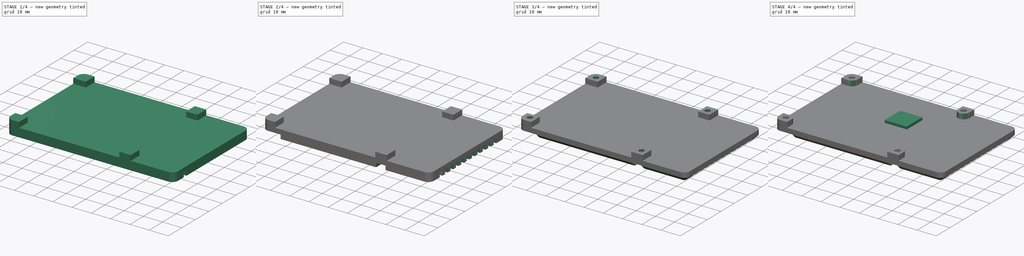
[diagram: build sequence overview — one tinted view per stage of 4, left to right]
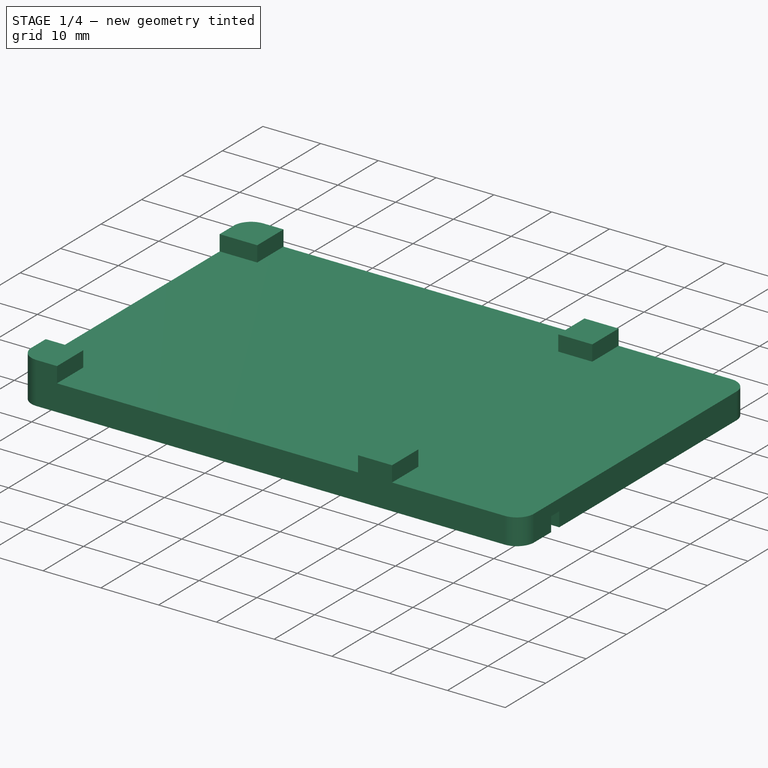
[diagram: stage 1 of 4 — iso view after this stage's code; geometry added in this stage tinted green]
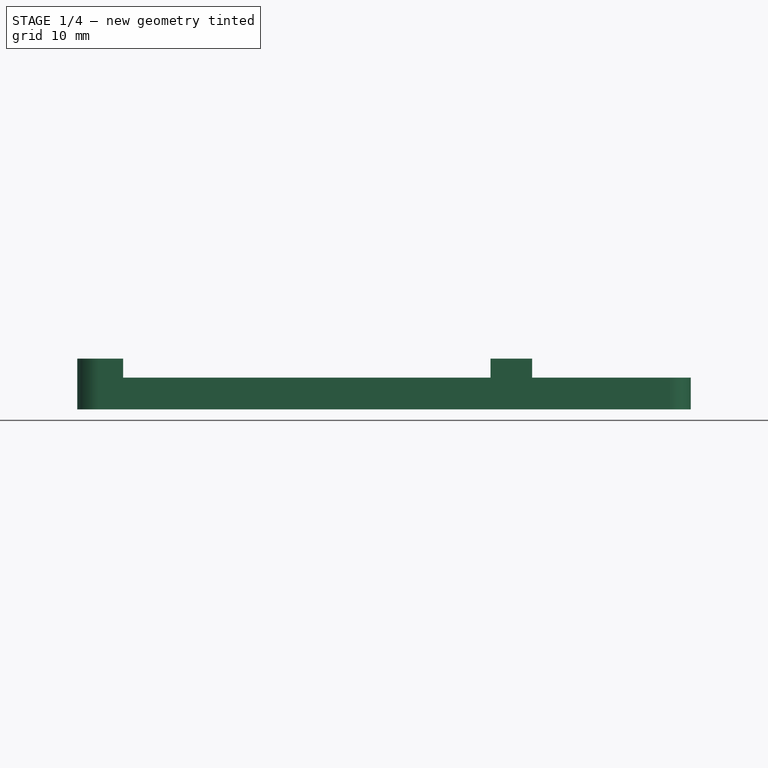
[diagram: stage 1 of 4 — front view after this stage's code; geometry added in this stage tinted green]
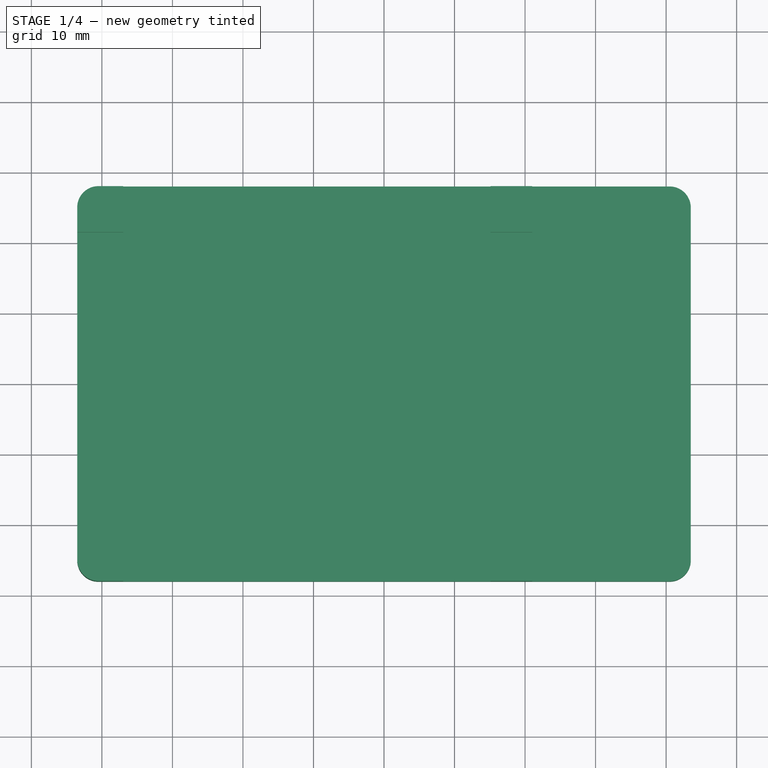
[diagram: stage 1 of 4 — top view after this stage's code; geometry added in this stage tinted green]
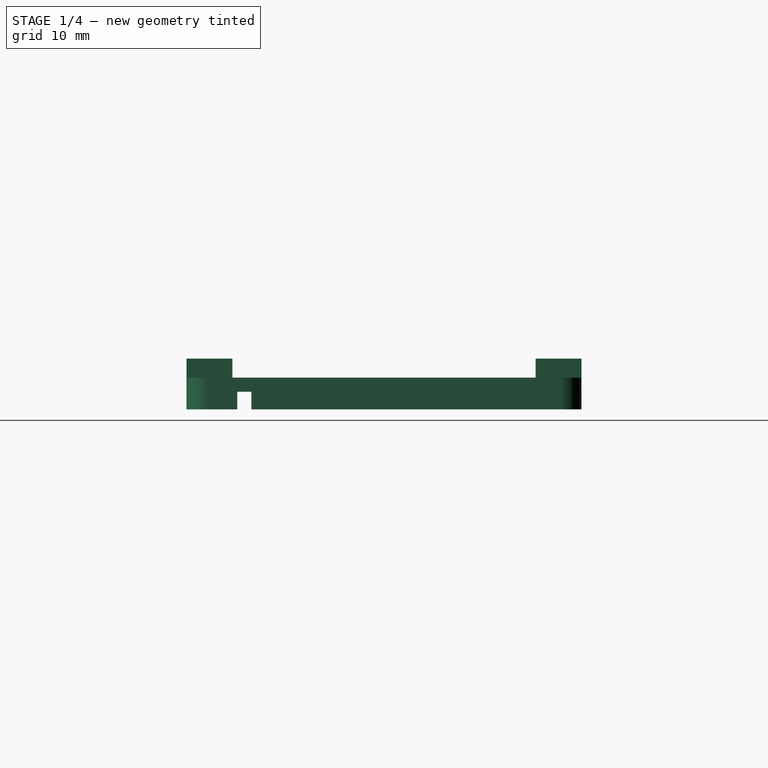
[diagram: stage 1 of 4 — right view after this stage's code; geometry added in this stage tinted green]
FCSTD DOCUMENT  (FreeCAD 0.18R16158 (Git))
Label: heatsink-bottom
License: All rights reserved
LicenseURL: http://en.wikipedia.org/wiki/All_rights_reserved
objects: Sketcher::SketchObject×7, PartDesign::Pocket×4, PartDesign::Pad×3, PartDesign::Mirrored×3, PartDesign::LinearPattern×1, PartDesign::Chamfer×1, PartDesign::Body×1
note: 27 computed .brp shape members not serialized (recipe doc carries the construction recipe); baked Part::Feature solids carry a one-line shape summary decoded from their .brp

FEATURE [Sketcher::SketchObject] Sketch
  MapMode = 5
  Support = -> [XY_Plane]
  sketch-geometry (8):
    g0: LineSegment StartX=43.5 StartY=25 StartZ=0 EndX=43.5 EndY=-25 EndZ=0
    g1: LineSegment StartX=-43.5 StartY=-25 StartZ=0 EndX=-43.5 EndY=25 EndZ=0
    g2: LineSegment StartX=-40.5 StartY=28 StartZ=0 EndX=40.5 EndY=28 EndZ=0
    g3: ArcOfCircle CenterX=-40.5 CenterY=25 CenterZ=0 NormalX=0 NormalY=0 NormalZ=1 AngleXU=0 Radius=3 StartAngle=1.5708 EndAngle=3.14159
    g4: ArcOfCircle CenterX=40.5 CenterY=25 CenterZ=0 NormalX=0 NormalY=0 NormalZ=1 AngleXU=0 Radius=3 StartAngle=0 EndAngle=1.5708
    g5: LineSegment StartX=-40.5 StartY=-28 StartZ=0 EndX=40.5 EndY=-28 EndZ=0
    g6: ArcOfCircle CenterX=-40.5 CenterY=-25 CenterZ=0 NormalX=0 NormalY=0 NormalZ=1 AngleXU=0 Radius=3 StartAngle=3.14159 EndAngle=4.71239
    g7: ArcOfCircle CenterX=40.5 CenterY=-25 CenterZ=0 NormalX=0 NormalY=0 NormalZ=1 AngleXU=0 Radius=3 StartAngle=4.71239 EndAngle=6.28319
  constraints (19):
    c: Vertical(g0)
    c: Vertical(g1)
    c: DistanceX(g1,g0) = 87
    c: Horizontal(g2)
    c: Tangent(g2,g4) = 1.5708
    c: Tangent(g4,g0) = 1.5708
    c: Tangent(g3,g1) = 1.5708
    c: Tangent(g3,g2) = 1.5708
    c: Horizontal(g5)
    c: Tangent(g5,g7) = -1.5708
    c: Tangent(g7,g0) = 1.5708
    c: Tangent(g6,g1) = 1.5708
    c: Tangent(g6,g5) = -1.5708
    c: Equal(g3,g4)
    c: Equal(g4,g6)
    c: Equal(g6,g7)
    c: DistanceY(g5,g2) = 56
    c: Symmetric(g3,g7,g-1)
    c: Radius(g3) = 3
FEATURE [PartDesign::Pad] Pad
  Length = 4.5
  Length2 = 100
  Profile = -> Sketch
  Type = 0
FEATURE [Sketcher::SketchObject] Sketch001
  ExternalGeometry = -> [Pad]
  MapMode = 5
  Placement = pos=(0,0,4.5) rot=(0,0,1;0rad)
  Support = -> [Pad]
  sketch-geometry (18):
    g0: LineSegment StartX=-43.5 StartY=21.5 StartZ=0 EndX=-37 EndY=21.5 EndZ=0
    g1: LineSegment StartX=-37 StartY=21.5 StartZ=0 EndX=-37 EndY=28 EndZ=0
    g2: LineSegment StartX=-43.5 StartY=21.5 StartZ=0 EndX=-43.5 EndY=25 EndZ=0
    g3: LineSegment StartX=-37 StartY=28 StartZ=0 EndX=-40.5 EndY=28 EndZ=0
    g4: ArcOfCircle CenterX=-40.5 CenterY=25 CenterZ=0 NormalX=0 NormalY=0 NormalZ=1 AngleXU=0 Radius=3 StartAngle=1.5708 EndAngle=3.14159
    g5: LineSegment StartX=15.1 StartY=28 StartZ=0 EndX=21 EndY=28 EndZ=0
    g6: LineSegment StartX=21 StartY=28 StartZ=0 EndX=21 EndY=21.5 EndZ=0
    g7: LineSegment StartX=21 StartY=21.5 StartZ=0 EndX=15.1 EndY=21.5 EndZ=0
    g8: LineSegment StartX=15.1 StartY=21.5 StartZ=0 EndX=15.1 EndY=28 EndZ=0
    g9: LineSegment StartX=-43.5 StartY=-21.5 StartZ=0 EndX=-43.5 EndY=-25 EndZ=0
    g10: LineSegment StartX=-40.5 StartY=-28 StartZ=0 EndX=-37 EndY=-28 EndZ=0
    g11: LineSegment StartX=-43.5 StartY=-21.5 StartZ=0 EndX=-37 EndY=-21.5 EndZ=0
    g12: LineSegment StartX=-37 StartY=-21.5 StartZ=0 EndX=-37 EndY=-28 EndZ=0
    g13: ArcOfCircle CenterX=-40.5 CenterY=-25 CenterZ=0 NormalX=0 NormalY=0 NormalZ=1 AngleXU=0 Radius=3 StartAngle=3.14159 EndAngle=4.71239
    g14: LineSegment StartX=15.1 StartY=-21.5 StartZ=0 EndX=21 EndY=-21.5 EndZ=0
    g15: LineSegment StartX=21 StartY=-21.5 StartZ=0 EndX=21 EndY=-28 EndZ=0
    g16: LineSegment StartX=21 StartY=-28 StartZ=0 EndX=15.1 EndY=-28 EndZ=0
    g17: LineSegment StartX=15.1 StartY=-28 StartZ=0 EndX=15.1 EndY=-21.5 EndZ=0
  constraints (49):
    c: PointOnObject(g0,g-3)
    c: Horizontal(g0)
    c: Coincident(g1,g0)
    c: PointOnObject(g1,g-4)
    c: Vertical(g1)
    c: Coincident(g2,g0)
    c: Coincident(g2,g-3)
    c: Coincident(g3,g1)
    c: Coincident(g3,g-4)
    c: Coincident(g4,g3)
    c: Tangent(g4,g2) = 1.5708
    c: DistanceX(g2,g1) = 6.5
    c: Coincident(g5,g6)
    c: Coincident(g6,g7)
    c: Coincident(g8,g5)
    c: Horizontal(g5)
    c: Horizontal(g7)
    c: Vertical(g6)
    c: Vertical(g8)
    c: PointOnObject(g5,g-4)
    c: DistanceX(g5,g5) = 5.9
    c: DistanceX(g1,g5) = 52.1
    c: PointOnObject(g9,g-3)
    c: Coincident(g9,g-3)
    c: Coincident(g10,g-5)
    c: Coincident(g11,g9)
    c: Horizontal(g11)
    c: Coincident(g12,g11)
    c: Coincident(g12,g10)
    c: Vertical(g12)
    c: Equal(g0,g1)
    c: Tangent(g13,g9) = -1.5708
    c: Tangent(g13,g10) = -1.5708
    c: Equal(g0,g11)
    c: Equal(g11,g12)
    c: Coincident(g14,g15)
    c: Coincident(g15,g16)
    c: Coincident(g16,g17)
    c: Horizontal(g14)
    c: Horizontal(g16)
    c: Vertical(g15)
    c: Vertical(g17)
    c: PointOnObject(g15,g-5)
    c: Vertical(g7,g14)
    c: DistanceY(g8,g8) = 6.5
    c: Equal(g17,g8)
    c: Coincident(g14,g17)
    c: Equal(g5,g16)
    c: Coincident(g7,g8)
FEATURE [PartDesign::Pad] Pad001
  BaseFeature = -> Pad
  Length = 2.7
  Length2 = 100
  Profile = -> Sketch001
  Type = 0
FEATURE [Sketcher::SketchObject] Sketch002
  ExternalGeometry = -> [Pad001]
  MapMode = 5
  Placement = pos=(0,0,0) rot=(1,0,0;3.14159rad)
  Support = -> [Pad001]
  sketch-geometry (4):
    g0: LineSegment StartX=-43.5 StartY=20.8 StartZ=0 EndX=43.5 EndY=20.8 EndZ=0
    g1: LineSegment StartX=43.5 StartY=20.8 StartZ=0 EndX=43.5 EndY=18.8 EndZ=0
    g2: LineSegment StartX=43.5 StartY=18.8 StartZ=0 EndX=-43.5 EndY=18.8 EndZ=0
    g3: LineSegment StartX=-43.5 StartY=18.8 StartZ=0 EndX=-43.5 EndY=20.8 EndZ=0
  constraints (12):
    c: Coincident(g0,g1)
    c: Coincident(g1,g2)
    c: Coincident(g2,g3)
    c: Coincident(g3,g0)
    c: Horizontal(g0)
    c: Horizontal(g2)
    c: Vertical(g1)
    c: Vertical(g3)
    c: PointOnObject(g0,g-3)
    c: PointOnObject(g1,g-4)
    c: DistanceY(g3,g3) = 2
    c: DistanceY(g0,g-5) = 7.2
FEATURE [PartDesign::Pocket] Pocket
  BaseFeature = -> Pad001
  Length = 2.5
  Length2 = 100
  Profile = -> Sketch002
  Type = 0
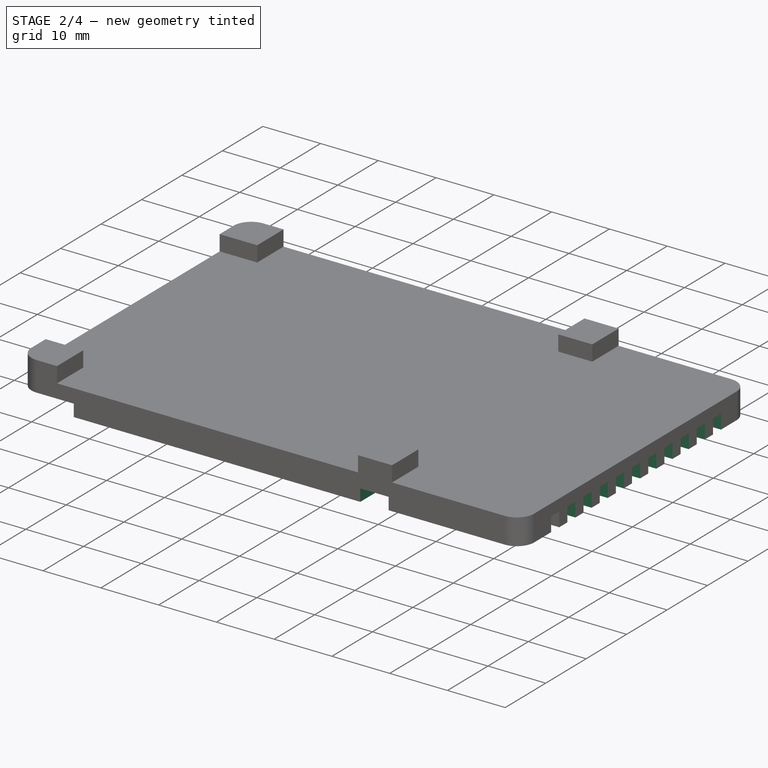
[diagram: stage 2 of 4 — iso view after this stage's code; geometry added in this stage tinted green]
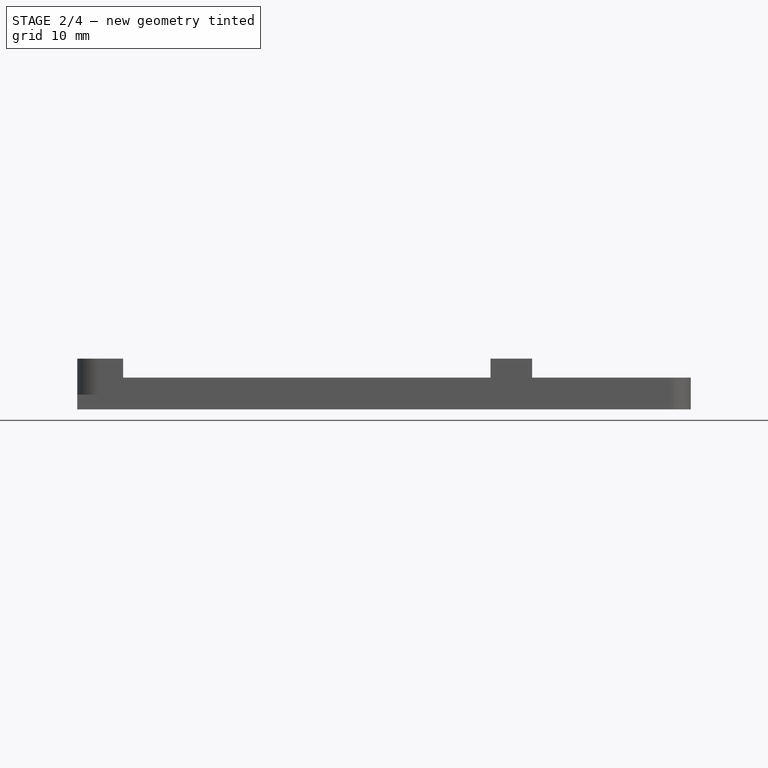
[diagram: stage 2 of 4 — front view after this stage's code; geometry added in this stage tinted green]
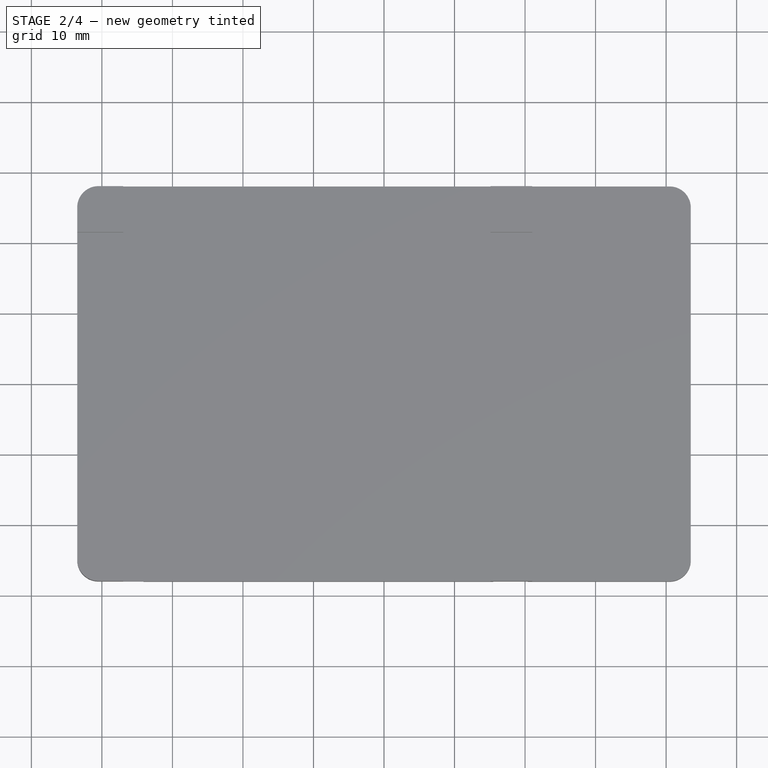
[diagram: stage 2 of 4 — top view after this stage's code; geometry added in this stage tinted green]
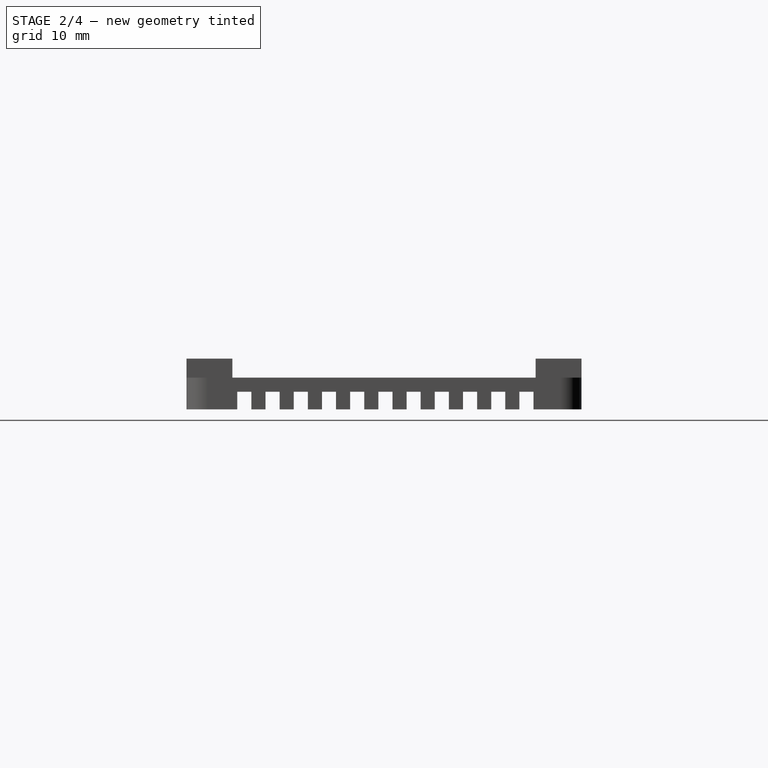
[diagram: stage 2 of 4 — right view after this stage's code; geometry added in this stage tinted green]
FEATURE [PartDesign::LinearPattern] LinearPattern
  BaseFeature = -> Pocket
  Direction = -> Sketch002 [V_Axis]
  Length = 40
  Occurrences = 11
  Originals = -> [Pocket]
  Reversed = true
FEATURE [Sketcher::SketchObject] Sketch003
  ExternalGeometry = -> [LinearPattern]
  MapMode = 5
  Placement = pos=(0,0,0) rot=(1,0,0;3.14159rad)
  Support = -> [LinearPattern]
  sketch-geometry (9):
    g0: LineSegment StartX=-43.5 StartY=25 StartZ=0 EndX=-43.5 EndY=20.8 EndZ=0
    g1: LineSegment StartX=-40.5 StartY=28 StartZ=0 EndX=-34.1 EndY=28 EndZ=0
    g2: LineSegment StartX=-43.5 StartY=20.8 StartZ=0 EndX=-34.1 EndY=20.8 EndZ=0
    g3: LineSegment StartX=-34.1 StartY=20.8 StartZ=0 EndX=-34.1 EndY=28 EndZ=0
    g4: ArcOfCircle CenterX=-40.5 CenterY=25 CenterZ=0 NormalX=0 NormalY=0 NormalZ=1 AngleXU=0 Radius=3 StartAngle=1.5708 EndAngle=3.14159
    g5: LineSegment StartX=15.5 StartY=28 StartZ=0 EndX=20.4 EndY=28 EndZ=0
    g6: LineSegment StartX=20.4 StartY=28 StartZ=0 EndX=20.4 EndY=20.8 EndZ=0
    g7: LineSegment StartX=20.4 StartY=20.8 StartZ=0 EndX=15.5 EndY=20.8 EndZ=0
    g8: LineSegment StartX=15.5 StartY=20.8 StartZ=0 EndX=15.5 EndY=28 EndZ=0
  constraints (24):
    c: Coincident(g0,g-3)
    c: Coincident(g0,g-3)
    c: Coincident(g1,g-4)
    c: PointOnObject(g1,g-4)
    c: Coincident(g2,g0)
    c: Horizontal(g2)
    c: Coincident(g3,g2)
    c: Coincident(g3,g1)
    c: Vertical(g3)
    c: Coincident(g4,g0)
    c: Tangent(g4,g1) = 1.5708
    c: DistanceX(g1,g1) = 6.4
    c: Coincident(g5,g6)
    c: Coincident(g6,g7)
    c: Coincident(g7,g8)
    c: Coincident(g8,g5)
    c: Horizontal(g5)
    c: Horizontal(g7)
    c: Vertical(g6)
    c: Vertical(g8)
    c: PointOnObject(g5,g-4)
    c: PointOnObject(g7,g-5)
    c: DistanceX(g0,g5) = 59
    c: DistanceX(g5,g5) = 4.9
FEATURE [PartDesign::Pocket] Pocket001
  BaseFeature = -> LinearPattern
  Length = 2.1
  Length2 = 100
  Profile = -> Sketch003
  Type = 0
FEATURE [PartDesign::Mirrored] Mirrored
  BaseFeature = -> Pocket001
  MirrorPlane = -> Sketch003 [H_Axis]
  Originals = -> [Pocket001]
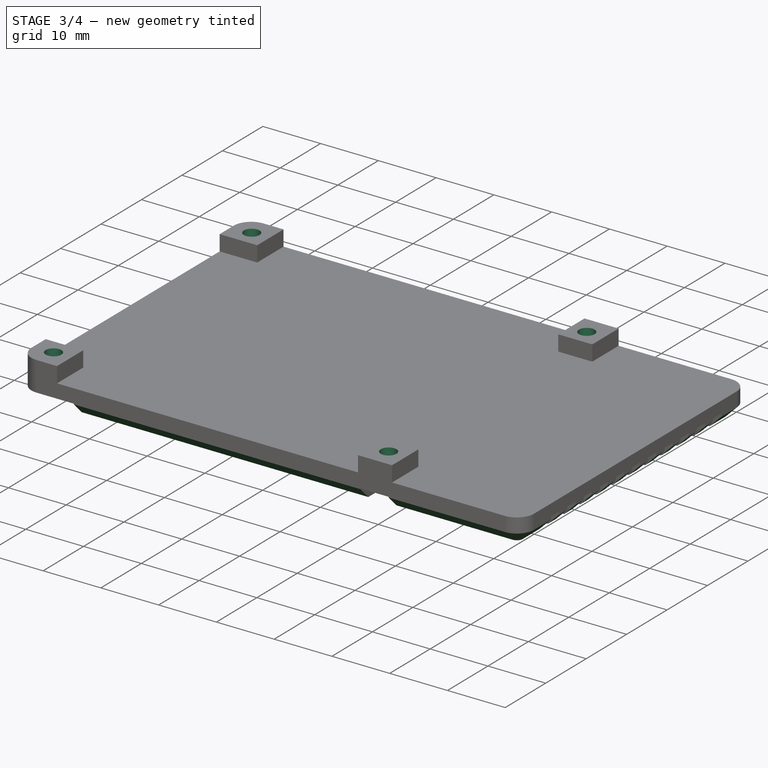
[diagram: stage 3 of 4 — iso view after this stage's code; geometry added in this stage tinted green]
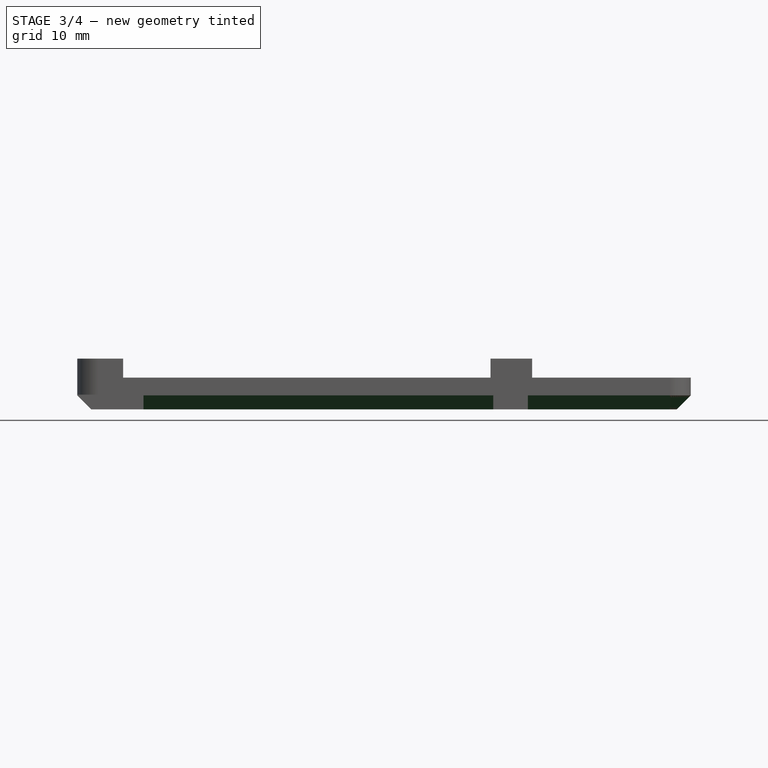
[diagram: stage 3 of 4 — front view after this stage's code; geometry added in this stage tinted green]
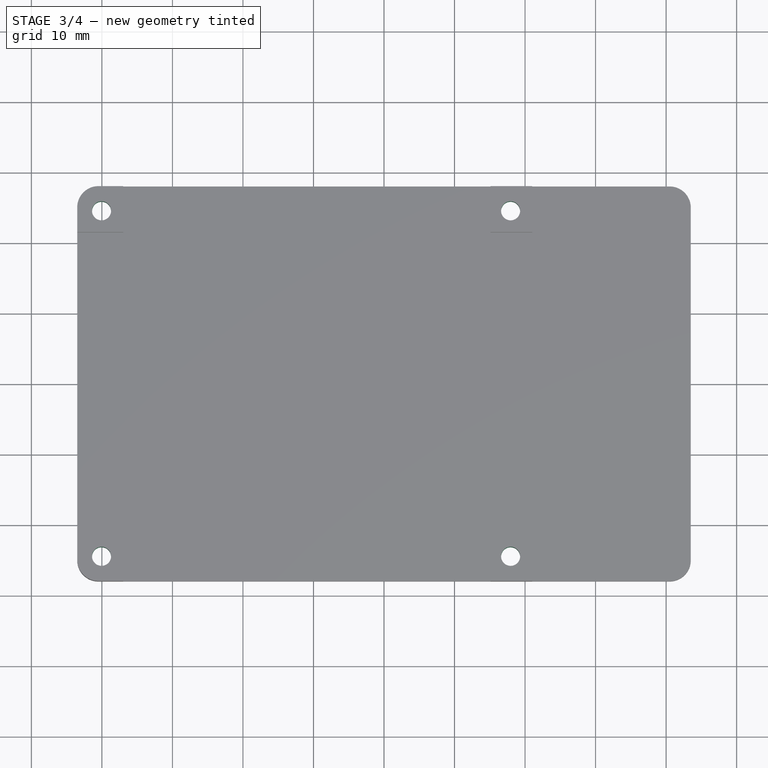
[diagram: stage 3 of 4 — top view after this stage's code; geometry added in this stage tinted green]
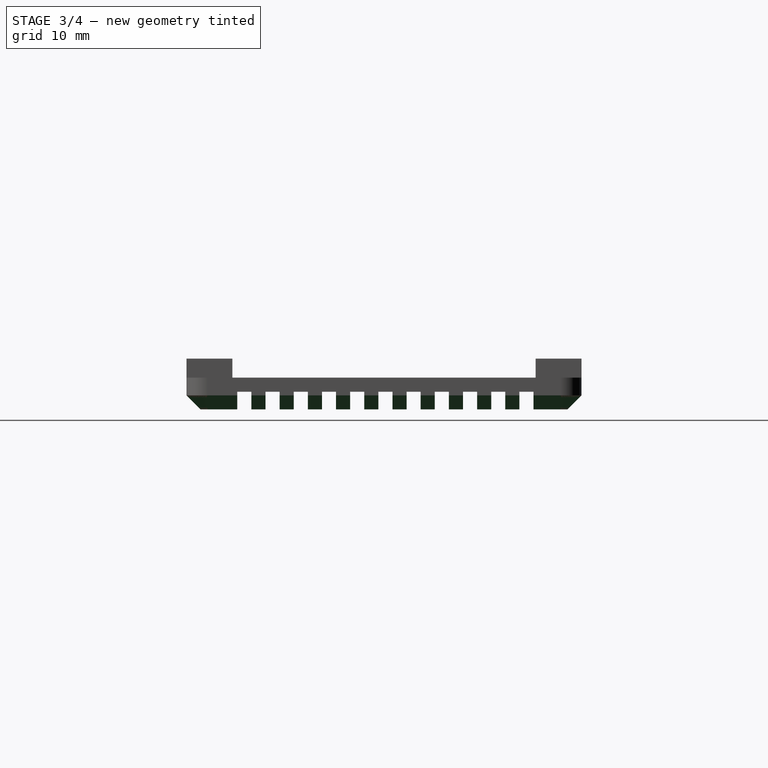
[diagram: stage 3 of 4 — right view after this stage's code; geometry added in this stage tinted green]
FEATURE [Sketcher::SketchObject] Sketch004
  ExternalGeometry = -> [Mirrored]
  MapMode = 5
  Placement = pos=(0,0,2.1) rot=(1,0,0;3.14159rad)
  Support = -> [Mirrored]
  sketch-geometry (3):
    g0: Circle CenterX=-40.05 CenterY=24.5 CenterZ=0 NormalX=0 NormalY=0 NormalZ=1 AngleXU=0 Radius=1.35
    g1: Circle CenterX=17.95 CenterY=24.5 CenterZ=0 NormalX=0 NormalY=0 NormalZ=1 AngleXU=0 Radius=1.35
    g2: GeomPoint X=17.95 Y=28 Z=0
  constraints (7):
    c: Equal(g0,g1)
    c: Diameter(g0) = 2.7
    c: Horizontal(g1,g0)
    c: DistanceX(g0,g1) = 58
    c: DistanceY(g0) = 24.5
    c: Symmetric(g-3,g-3,g2)
    c: Vertical(g1,g2)
FEATURE [PartDesign::Pocket] Pocket002
  BaseFeature = -> Mirrored
  Length = 5
  Length2 = 100
  Profile = -> Sketch004
  Type = 1
FEATURE [PartDesign::Mirrored] Mirrored001
  BaseFeature = -> Pocket002
  MirrorPlane = -> Sketch004 [H_Axis]
  Originals = -> [Pocket002]
FEATURE [PartDesign::Chamfer] Chamfer
  Base = -> Mirrored001 [Edge3,Edge98,Edge94,Edge90,Edge86,Edge82,Edge78,Edge74,Edge70,Edge66,Edge62,Edge166,Edge170,Edge182,Edge153,Edge149,Edge145,Edge141,Edge137,Edge133,Edge129,Edge125,Edge121,Edge117,Edge113,Edge31,Edge32,Edge7]
  BaseFeature = -> Mirrored001
  Size = 1.99
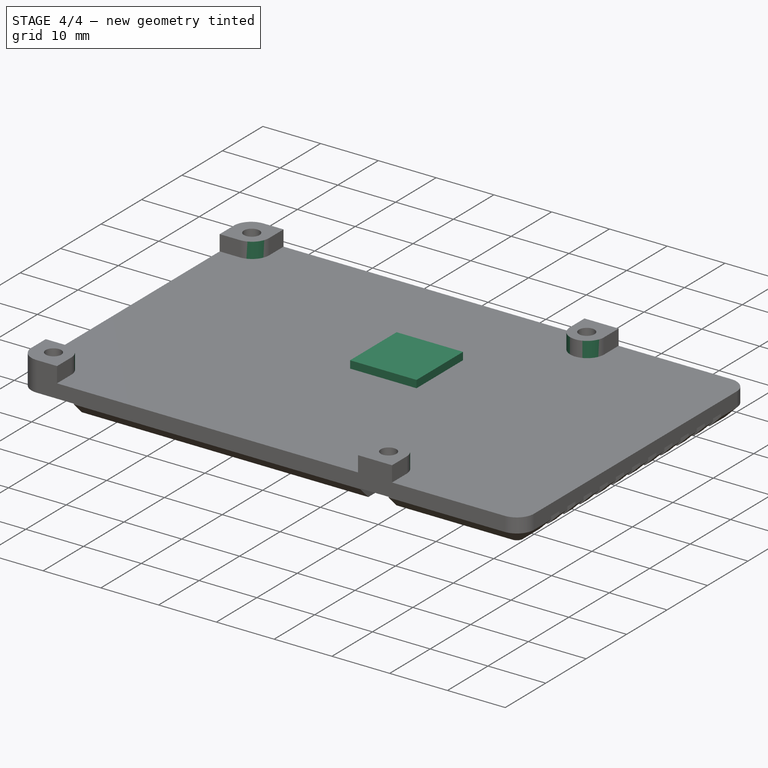
[diagram: stage 4 of 4 — iso view after this stage's code; geometry added in this stage tinted green]
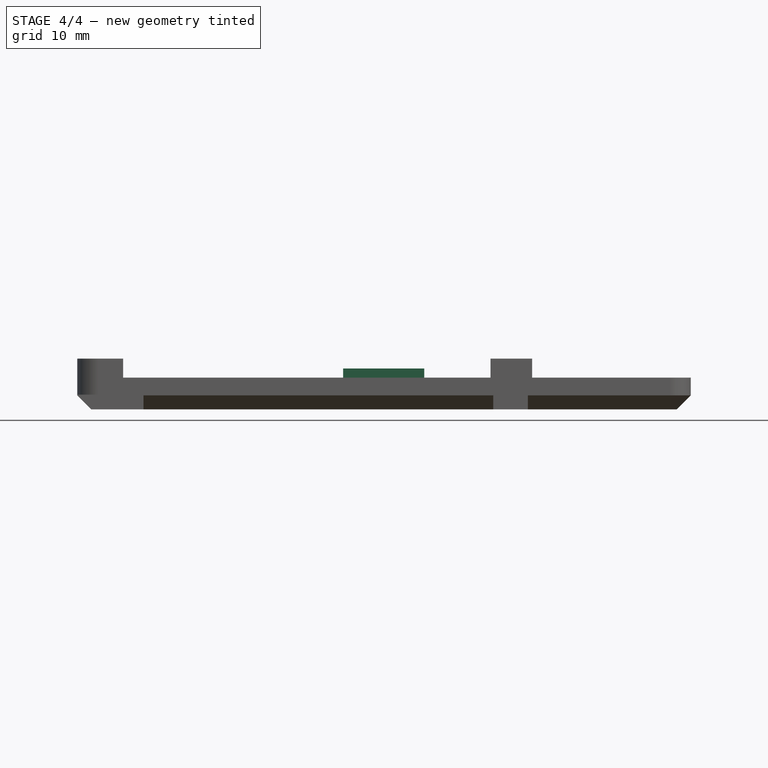
[diagram: stage 4 of 4 — front view after this stage's code; geometry added in this stage tinted green]
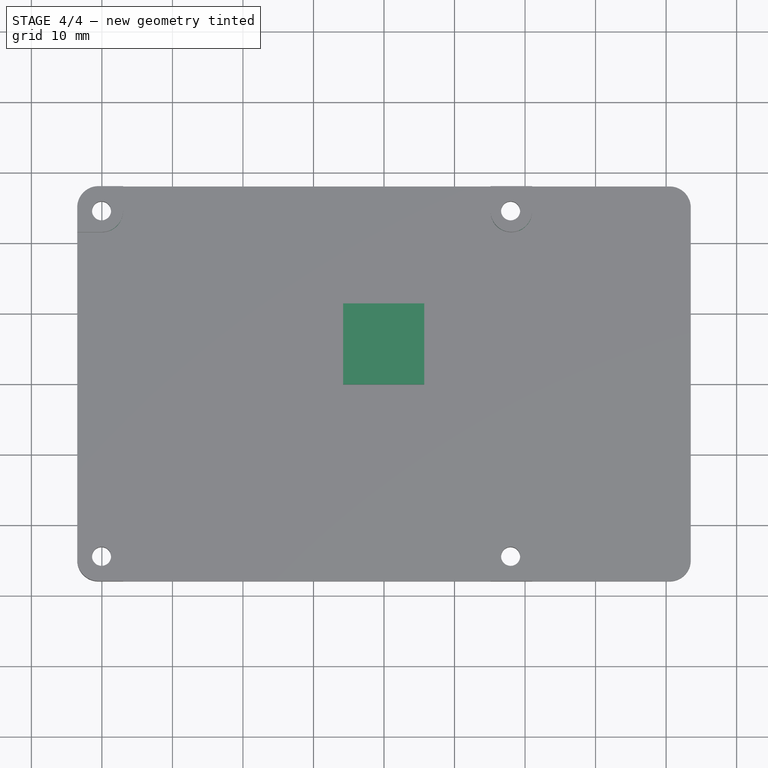
[diagram: stage 4 of 4 — top view after this stage's code; geometry added in this stage tinted green]
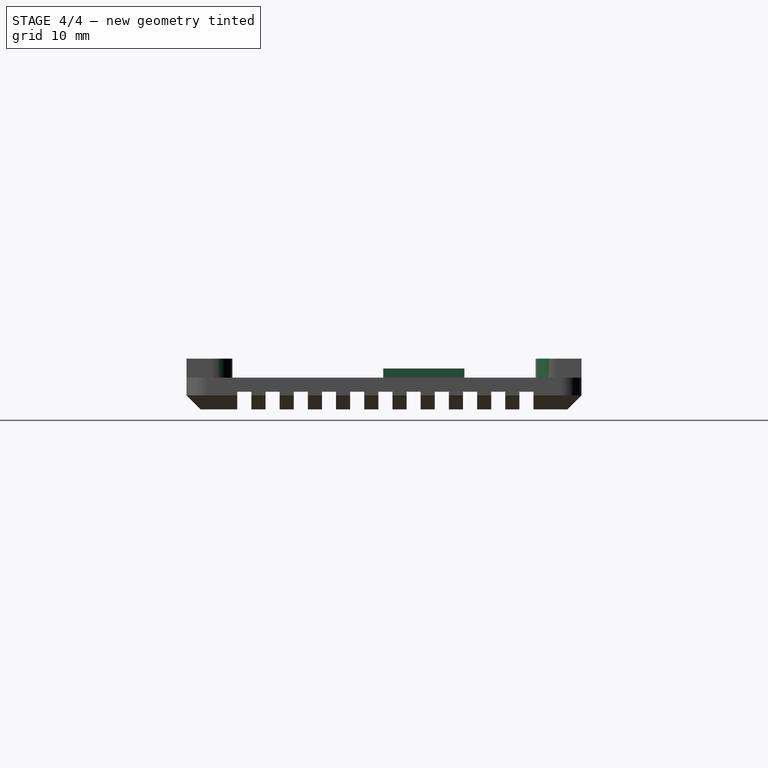
[diagram: stage 4 of 4 — right view after this stage's code; geometry added in this stage tinted green]
FEATURE [Sketcher::SketchObject] Sketch005
  ExternalGeometry = -> [Chamfer]
  MapMode = 5
  Placement = pos=(0,0,7.2) rot=(0,0,1;0rad)
  Support = -> [Chamfer]
  sketch-geometry (9):
    g0: LineSegment StartX=-40 StartY=21.5 StartZ=0 EndX=-37 EndY=21.5 EndZ=0
    g1: LineSegment StartX=-37 StartY=24.5 StartZ=0 EndX=-37 EndY=21.5 EndZ=0
    g2: ArcOfCircle CenterX=-40 CenterY=24.5 CenterZ=0 NormalX=0 NormalY=0 NormalZ=1 AngleXU=0 Radius=3 StartAngle=4.71239 EndAngle=6.28319
    g3: GeomPoint X=17.95 Y=22.5 Z=0
    g4: LineSegment StartX=15.1 StartY=21.5 StartZ=0 EndX=21 EndY=21.5 EndZ=0
    g5: LineSegment StartX=15.1 StartY=21.5 StartZ=0 EndX=15.1 EndY=24.4583 EndZ=0
    g6: LineSegment StartX=21 StartY=24.4583 StartZ=0 EndX=21 EndY=21.5 EndZ=0
    g7: ArcOfCircle CenterX=18.05 CenterY=24.4583 CenterZ=0 NormalX=0 NormalY=0 NormalZ=1 AngleXU=0 Radius=2.95 StartAngle=3.14159 EndAngle=6.28319
    g8: GeomPoint X=17.95 Y=21.51 Z=0
  constraints (20):
    c: PointOnObject(g0,g-3)
    c: Coincident(g0,g-4)
    c: PointOnObject(g1,g-4)
    c: Coincident(g1,g0)
    c: Tangent(g2,g0) = -1.5708
    c: Tangent(g2,g1) = 1.5708
    c: Radius(g2) = 3
    c: Vertical(g3,g-7)
    c: DistanceY(g-5,g3) = 1
    c: PointOnObject(g5,g-5)
    c: Coincident(g5,g-5)
    c: Coincident(g4,g5)
    c: Coincident(g4,g-6)
    c: PointOnObject(g6,g-6)
    c: Coincident(g6,g4)
    c: Tangent(g7,g5) = 1.5708
    c: Tangent(g7,g6) = 1.5708
    c: PointOnObject(g8,g7)
    c: Vertical(g8,g-7)
    c: DistanceY(g4,g8) = 0.01
FEATURE [PartDesign::Pocket] Pocket003
  BaseFeature = -> Chamfer
  Length = 2.7
  Length2 = 100
  Profile = -> Sketch005
  Type = 0
FEATURE [PartDesign::Mirrored] Mirrored002
  BaseFeature = -> Pocket003
  MirrorPlane = -> Sketch005 [H_Axis]
  Originals = -> [Pocket003]
  Refine = true
FEATURE [Sketcher::SketchObject] Sketch006
  ExternalGeometry = -> [Mirrored002]
  MapMode = 5
  Placement = pos=(0,0,4.5) rot=(0,0,1;0rad)
  Support = -> [Mirrored002]
  sketch-geometry (4):
    g0: LineSegment StartX=-5.8 StartY=11.4 StartZ=0 EndX=5.7 EndY=11.4 EndZ=0
    g1: LineSegment StartX=5.7 StartY=11.4 StartZ=0 EndX=5.7 EndY=-0.1 EndZ=0
    g2: LineSegment StartX=5.7 StartY=-0.1 StartZ=0 EndX=-5.8 EndY=-0.1 EndZ=0
    g3: LineSegment StartX=-5.8 StartY=-0.1 StartZ=0 EndX=-5.8 EndY=11.4 EndZ=0
  constraints (12):
    c: Coincident(g0,g1)
    c: Coincident(g1,g2)
    c: Coincident(g2,g3)
    c: Coincident(g3,g0)
    c: Horizontal(g0)
    c: Horizontal(g2)
    c: Vertical(g1)
    c: Vertical(g3)
    c: DistanceY(g0,g-3) = 16.6
    c: DistanceX(g-4,g0) = 37.7
    c: Equal(g0,g3)
    c: DistanceX(g0,g0) = 11.5
FEATURE [PartDesign::Pad] Pad002
  BaseFeature = -> Mirrored002
  Length = 1.3
  Length2 = 100
  Profile = -> Sketch006
  Type = 0
FEATURE [PartDesign::Body] Body  label="heatsink-bottom"
  Group = -> [Sketch,Pad,Sketch001,Pad001,Sketch002,Pocket,LinearPattern,Sketch003,Pocket001,Mirrored,Sketch004,Pocket002,Mirrored001,Chamfer,Sketch005,Pocket003,Mirrored002,Sketch006,Pad002]
  Origin = -> Origin
  Tip = -> Pad002
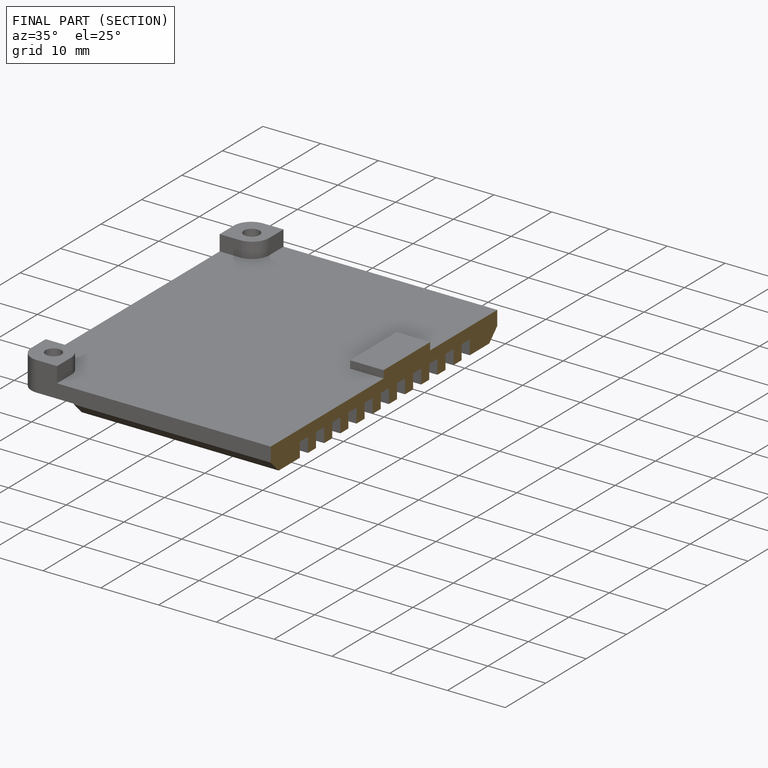
[diagram: finished part — half-section view (interior)]
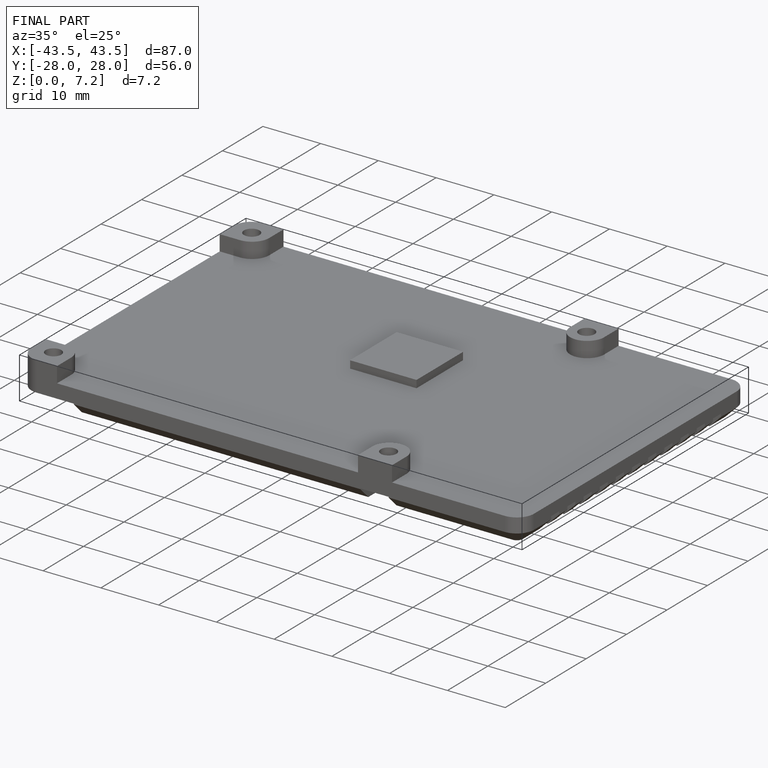
[diagram: finished part — iso view with bounding-box wireframe]
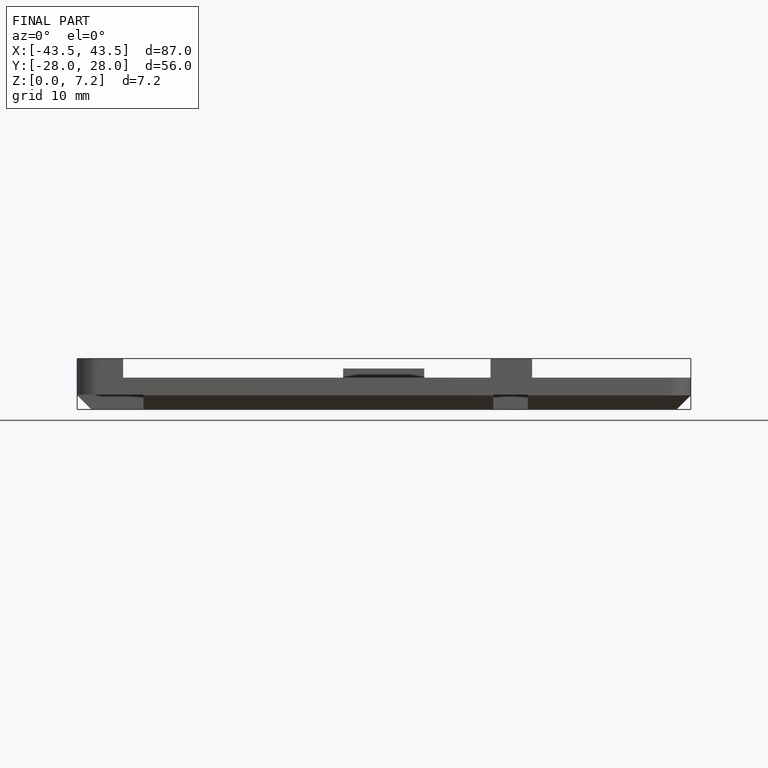
[diagram: finished part — front view with bounding-box wireframe]
